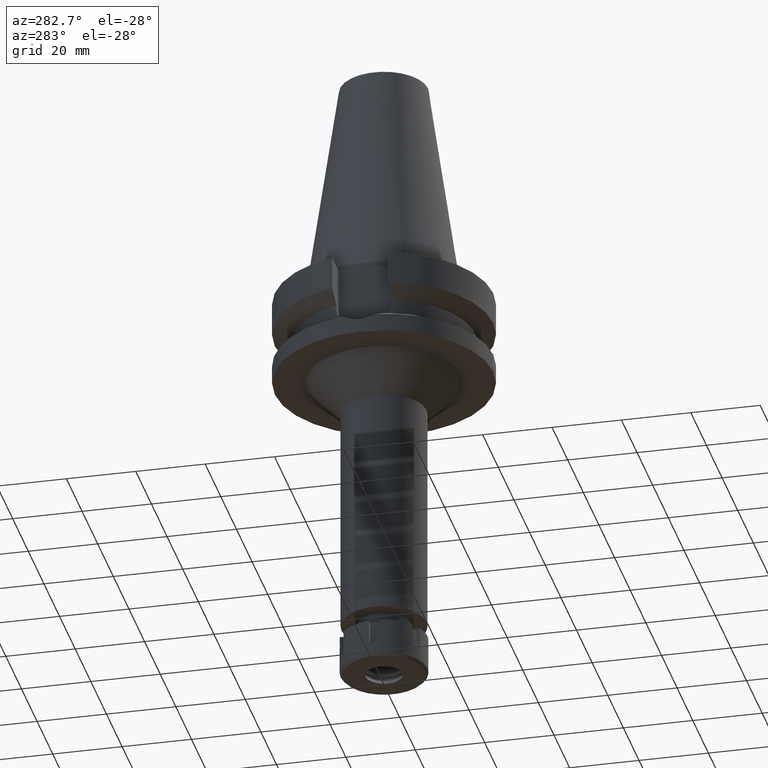
[diagram: clean part render]
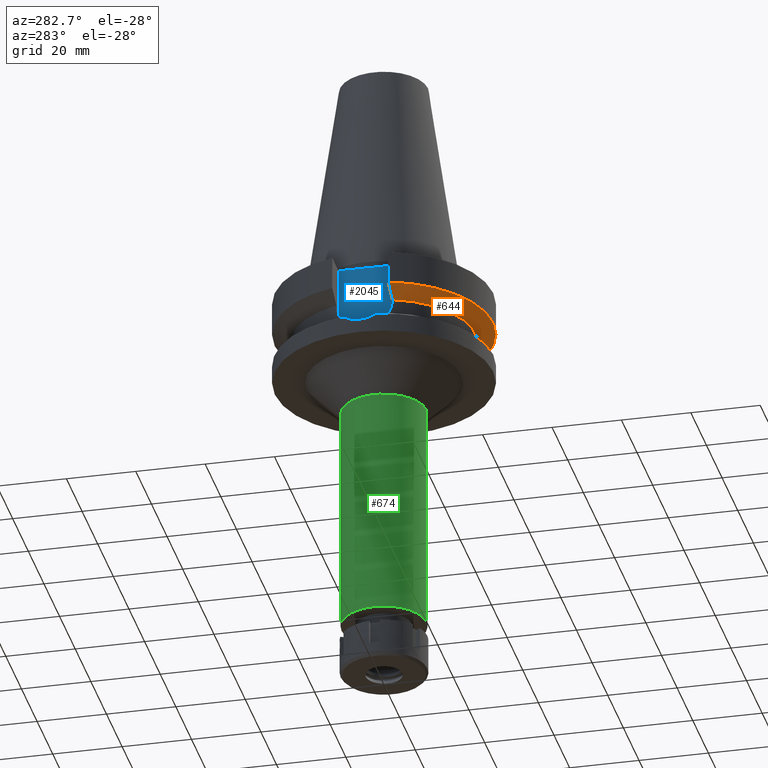
[diagram: same view with three faces highlighted in distinct colors, each labeled with its STEP entity id]
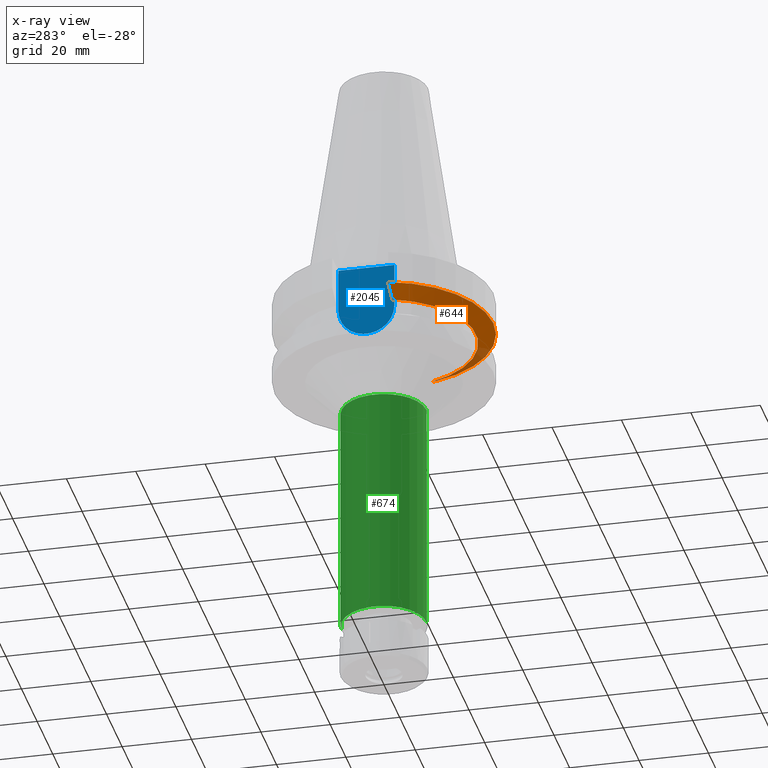
[diagram: x-ray of the same camera — body ghosted, the three highlighted faces saturated]
A machine part, auxiliary view with three faces highlighted in distinct colors.
The next image is the same camera in x-ray (body ghosted, the three faces saturated) — at least one of them is partly hidden behind the body in this view.
Their STEP definitions:

[orange] entity #644 — the highlighted conical surface has half-angle 60 deg.
#82 = CARTESIAN_POINT ( 'NONE',  ( 25.24772266958000344, -8.050000000000000711, -14.45225699861000024 ) ) ;
#123 = DIRECTION ( 'NONE',  ( 0.0000000000000000000, 1.000000000000000000, 0.0000000000000000000 ) ) ;
#185 = DIRECTION ( 'NONE',  ( 0.9527442516822307583, -0.3037735849057093818, 0.0000000000000000000 ) ) ;
#209 = B_SPLINE_CURVE_WITH_KNOTS ( 'NONE', 3,
 ( #419, #1010, #725, #1811 ),
 .UNSPECIFIED., .F., .F.,
 ( 4, 4 ),
 ( 0.0000000000000000000, 1.000000000000000000 ),
 .UNSPECIFIED. ) ;
#344 = ORIENTED_EDGE ( 'NONE', *, *, #775, .F. ) ;
#392 = EDGE_CURVE ( 'NONE', #3501, #2701, #1164, .T. ) ;
#419 = CARTESIAN_POINT ( 'NONE',  ( 25.24772266958000344, -8.050000000000000711, -14.45225699861000024 ) ) ;
#644 = ADVANCED_FACE ( 'NONE', ( #660 ), #3402, .T. ) ;
#649 = ORIENTED_EDGE ( 'NONE', *, *, #2582, .T. ) ;
#660 = FACE_OUTER_BOUND ( 'NONE', #1186, .T. ) ;
#702 = AXIS2_PLACEMENT_3D ( 'NONE', #2314, #1750, #123 ) ;
#725 = CARTESIAN_POINT ( 'NONE',  ( 28.57294949776638759, -8.050008281712610625, -12.61547991384305512 ) ) ;
#775 = EDGE_CURVE ( 'NONE', #1689, #3068, #3468, .T. ) ;
#995 = CARTESIAN_POINT ( 'NONE',  ( -30.45402291362999847, -8.049999278026000127, -11.56551215534000043 ) ) ;
#1010 = CARTESIAN_POINT ( 'NONE',  ( 26.83757728299760359, -8.050003176183857079, -13.57772966268345094 ) ) ;
#1164 = CIRCLE ( 'NONE', #1349, 26.50000000000000711 ) ;
#1186 = EDGE_LOOP ( 'NONE', ( #3024, #1470, #649, #344 ) ) ;
#1349 = AXIS2_PLACEMENT_3D ( 'NONE', #2187, #1917, #185 ) ;
#1350 = CARTESIAN_POINT ( 'NONE',  ( -30.45402291362999847, -8.049999278026000127, -11.56551215534000043 ) ) ;
#1470 = ORIENTED_EDGE ( 'NONE', *, *, #392, .F. ) ;
#1567 = CARTESIAN_POINT ( 'NONE',  ( -26.83754615572276236, -8.049990821050940326, -13.57774888351514164 ) ) ;
#1689 = VERTEX_POINT ( 'NONE', #1350 ) ;
#1750 = DIRECTION ( 'NONE',  ( 0.0000000000000000000, 0.0000000000000000000, 1.000000000000000000 ) ) ;
#1780 = B_SPLINE_CURVE_WITH_KNOTS ( 'NONE', 3,
 ( #995, #1873, #1567, #2420 ),
 .UNSPECIFIED., .F., .F.,
 ( 4, 4 ),
 ( 0.0000000000000000000, 1.000000000000000000 ),
 .UNSPECIFIED. ) ;
#1811 = CARTESIAN_POINT ( 'NONE',  ( 30.45402272279000044, -8.049999999999000622, -11.56550565266999975 ) ) ;
#1873 = CARTESIAN_POINT ( 'NONE',  ( -28.57292328645239010, -8.049998556992253640, -12.61549605752226100 ) ) ;
#1917 = DIRECTION ( 'NONE',  ( 0.0000000000000000000, 0.0000000000000000000, -1.000000000000000000 ) ) ;
#2124 = CARTESIAN_POINT ( 'NONE',  ( 30.45402272279000044, -8.049999999999000622, -11.56550565266999975 ) ) ;
#2160 = CARTESIAN_POINT ( 'NONE',  ( -25.24772413127000092, -8.049995415600999848, -14.45229202940000057 ) ) ;
#2170 = DIRECTION ( 'NONE',  ( 0.0000000000000000000, 0.0000000000000000000, 1.000000000000000000 ) ) ;
#2187 = CARTESIAN_POINT ( 'NONE',  ( 0.0000000000000000000, 1.065333950388000029E-14, -14.45225699861000024 ) ) ;
#2314 = CARTESIAN_POINT ( 'NONE',  ( 0.0000000000000000000, 1.065333950388000029E-14, -13.00888132564000088 ) ) ;
#2407 = AXIS2_PLACEMENT_3D ( 'NONE', #3572, #2170, #2963 ) ;
#2420 = CARTESIAN_POINT ( 'NONE',  ( -25.24772413127000092, -8.049995415600999848, -14.45229202940000057 ) ) ;
#2582 = EDGE_CURVE ( 'NONE', #3501, #3068, #209, .T. ) ;
#2701 = VERTEX_POINT ( 'NONE', #2160 ) ;
#2963 = DIRECTION ( 'NONE',  ( 0.0000000000000000000, -1.000000000000000000, 0.0000000000000000000 ) ) ;
#3024 = ORIENTED_EDGE ( 'NONE', *, *, #3056, .T. ) ;
#3056 = EDGE_CURVE ( 'NONE', #1689, #2701, #1780, .T. ) ;
#3068 = VERTEX_POINT ( 'NONE', #2124 ) ;
#3402 = CONICAL_SURFACE ( 'NONE', #702, 29.00000000000000000, 1.047197551196400456 ) ;
#3468 = CIRCLE ( 'NONE', #2407, 31.50000000000000000 ) ;
#3501 = VERTEX_POINT ( 'NONE', #82 ) ;
#3572 = CARTESIAN_POINT ( 'NONE',  ( 0.0000000000000000000, 1.065333950388000029E-14, -11.56550565266999975 ) ) ;

[blue] entity #2045 — the highlighted planar face has unit normal (-1, 0, 0).
#672 = LINE ( 'NONE', #1249, #1288 ) ;
#688 = VECTOR ( 'NONE', #2161, 1000.000000000000000 ) ;
#897 = AXIS2_PLACEMENT_3D ( 'NONE', #1205, #3452, #924 ) ;
#915 = CARTESIAN_POINT ( 'NONE',  ( -22.50000000000000000, 8.050000000000000711, -2.000000000000000000 ) ) ;
#924 = DIRECTION ( 'NONE',  ( 0.0000000000000000000, -1.000000000000000000, 1.917893035551997704E-14 ) ) ;
#1048 = CARTESIAN_POINT ( 'NONE',  ( -22.50000000000000000, 8.050000000000000711, -14.94999999999999929 ) ) ;
#1169 = VERTEX_POINT ( 'NONE', #915 ) ;
#1188 = CARTESIAN_POINT ( 'NONE',  ( -22.50000000000000000, -8.050000000000000711, -2.000000000000000000 ) ) ;
#1205 = CARTESIAN_POINT ( 'NONE',  ( -22.50000000000000000, 1.807578675540999863E-14, -14.94999999999999929 ) ) ;
#1249 = CARTESIAN_POINT ( 'NONE',  ( -22.50000000000000000, -8.050000000000000711, -2.000000000000000000 ) ) ;
#1263 = CARTESIAN_POINT ( 'NONE',  ( -22.50000000000000000, -8.050000000000000711, -2.000000000000000000 ) ) ;
#1288 = VECTOR ( 'NONE', #2792, 1000.000000000000000 ) ;
#1292 = PLANE ( 'NONE',  #3280 ) ;
#1513 = DIRECTION ( 'NONE',  ( 0.0000000000000000000, 0.0000000000000000000, 1.000000000000000000 ) ) ;
#1517 = VERTEX_POINT ( 'NONE', #2684 ) ;
#1554 = CARTESIAN_POINT ( 'NONE',  ( -22.50000000000000000, 2.173748068486999793E-14, 0.0000000000000000000 ) ) ;
#1775 = LINE ( 'NONE', #1188, #3641 ) ;
#1891 = ORIENTED_EDGE ( 'NONE', *, *, #2916, .F. ) ;
#1949 = CIRCLE ( 'NONE', #897, 8.050000000000000711 ) ;
#1961 = ORIENTED_EDGE ( 'NONE', *, *, #3510, .F. ) ;
#2045 = ADVANCED_FACE ( 'NONE', ( #2111 ), #1292, .T. ) ;
#2111 = FACE_OUTER_BOUND ( 'NONE', #2434, .T. ) ;
#2161 = DIRECTION ( 'NONE',  ( 0.0000000000000000000, 0.0000000000000000000, 1.000000000000000000 ) ) ;
#2166 = EDGE_CURVE ( 'NONE', #2852, #1169, #2439, .T. ) ;
#2350 = ORIENTED_EDGE ( 'NONE', *, *, #2166, .F. ) ;
#2434 = EDGE_LOOP ( 'NONE', ( #2350, #1961, #1891, #3126 ) ) ;
#2439 = LINE ( 'NONE', #1048, #688 ) ;
#2597 = VERTEX_POINT ( 'NONE', #1263 ) ;
#2614 = DIRECTION ( 'NONE',  ( 0.0000000000000000000, 0.0000000000000000000, -1.000000000000000000 ) ) ;
#2684 = CARTESIAN_POINT ( 'NONE',  ( -22.50000000000000000, -8.050000000000000711, -14.94999999999999929 ) ) ;
#2792 = DIRECTION ( 'NONE',  ( 0.0000000000000000000, 1.000000000000000000, 0.0000000000000000000 ) ) ;
#2852 = VERTEX_POINT ( 'NONE', #3374 ) ;
#2916 = EDGE_CURVE ( 'NONE', #2597, #1517, #1775, .T. ) ;
#3126 = ORIENTED_EDGE ( 'NONE', *, *, #3170, .T. ) ;
#3170 = EDGE_CURVE ( 'NONE', #2597, #1169, #672, .T. ) ;
#3280 = AXIS2_PLACEMENT_3D ( 'NONE', #1554, #3464, #1513 ) ;
#3374 = CARTESIAN_POINT ( 'NONE',  ( -22.50000000000000000, 8.050000000000000711, -14.94999999999999929 ) ) ;
#3452 = DIRECTION ( 'NONE',  ( 1.000000000000000000, 0.0000000000000000000, 0.0000000000000000000 ) ) ;
#3464 = DIRECTION ( 'NONE',  ( -1.000000000000000000, 0.0000000000000000000, 0.0000000000000000000 ) ) ;
#3510 = EDGE_CURVE ( 'NONE', #1517, #2852, #1949, .T. ) ;
#3641 = VECTOR ( 'NONE', #2614, 1000.000000000000000 ) ;

[green] entity #674 — the highlighted cylindrical surface (partial cylindrical patch) has radius 12.25 mm, axis along (0, 0, -1).
#191 = CARTESIAN_POINT ( 'NONE',  ( 0.0000000000000000000, 2.135416623673000070E-14, -104.5000000000000000 ) ) ;
#231 = EDGE_CURVE ( 'NONE', #912, #2574, #923, .T. ) ;
#369 = DIRECTION ( 'NONE',  ( 0.0000000000000000000, -1.000000000000000000, 0.0000000000000000000 ) ) ;
#384 = CARTESIAN_POINT ( 'NONE',  ( 0.0000000000000000000, -12.25000000000000000, -37.00000000000000000 ) ) ;
#467 = CIRCLE ( 'NONE', #1346, 12.25000000000000000 ) ;
#674 = ADVANCED_FACE ( 'NONE', ( #1521 ), #2627, .T. ) ;
#679 = DIRECTION ( 'NONE',  ( 0.0000000000000000000, 0.0000000000000000000, -1.000000000000000000 ) ) ;
#758 = CARTESIAN_POINT ( 'NONE',  ( 0.0000000000000000000, -12.25000000000000000, -104.5000000000000000 ) ) ;
#912 = VERTEX_POINT ( 'NONE', #3361 ) ;
#921 = CARTESIAN_POINT ( 'NONE',  ( 0.0000000000000000000, 2.135416623673000070E-14, 74.37000000000000455 ) ) ;
#923 = LINE ( 'NONE', #2038, #1980 ) ;
#974 = ORIENTED_EDGE ( 'NONE', *, *, #2748, .T. ) ;
#1308 = DIRECTION ( 'NONE',  ( 0.0000000000000000000, 1.000000000000000000, 0.0000000000000000000 ) ) ;
#1311 = ORIENTED_EDGE ( 'NONE', *, *, #1571, .T. ) ;
#1346 = AXIS2_PLACEMENT_3D ( 'NONE', #191, #2698, #1308 ) ;
#1444 = ORIENTED_EDGE ( 'NONE', *, *, #231, .T. ) ;
#1491 = LINE ( 'NONE', #384, #3155 ) ;
#1521 = FACE_OUTER_BOUND ( 'NONE', #2583, .T. ) ;
#1571 = EDGE_CURVE ( 'NONE', #3469, #912, #3382, .T. ) ;
#1622 = VERTEX_POINT ( 'NONE', #758 ) ;
#1819 = AXIS2_PLACEMENT_3D ( 'NONE', #921, #2374, #369 ) ;
#1856 = DIRECTION ( 'NONE',  ( 0.0000000000000000000, 0.0000000000000000000, -1.000000000000000000 ) ) ;
#1980 = VECTOR ( 'NONE', #3171, 1000.000000000000000 ) ;
#1988 = CARTESIAN_POINT ( 'NONE',  ( 0.0000000000000000000, -12.25000000000000000, -37.00000000000000000 ) ) ;
#2038 = CARTESIAN_POINT ( 'NONE',  ( 0.0000000000000000000, 12.25000000000000000, -37.00000000000000000 ) ) ;
#2078 = CARTESIAN_POINT ( 'NONE',  ( 0.0000000000000000000, 12.25000000000000000, -104.5000000000000000 ) ) ;
#2094 = EDGE_CURVE ( 'NONE', #3469, #1622, #1491, .T. ) ;
#2374 = DIRECTION ( 'NONE',  ( 0.0000000000000000000, 0.0000000000000000000, -1.000000000000000000 ) ) ;
#2574 = VERTEX_POINT ( 'NONE', #2078 ) ;
#2583 = EDGE_LOOP ( 'NONE', ( #974, #3222, #1311, #1444 ) ) ;
#2627 = CYLINDRICAL_SURFACE ( 'NONE', #1819, 12.25000000000000000 ) ;
#2646 = DIRECTION ( 'NONE',  ( 0.0000000000000000000, -1.000000000000000000, 0.0000000000000000000 ) ) ;
#2698 = DIRECTION ( 'NONE',  ( 0.0000000000000000000, 0.0000000000000000000, 1.000000000000000000 ) ) ;
#2748 = EDGE_CURVE ( 'NONE', #2574, #1622, #467, .T. ) ;
#2914 = AXIS2_PLACEMENT_3D ( 'NONE', #3209, #679, #2646 ) ;
#3155 = VECTOR ( 'NONE', #1856, 1000.000000000000000 ) ;
#3171 = DIRECTION ( 'NONE',  ( 0.0000000000000000000, 0.0000000000000000000, -1.000000000000000000 ) ) ;
#3209 = CARTESIAN_POINT ( 'NONE',  ( 0.0000000000000000000, 0.0000000000000000000, -37.00000000000000000 ) ) ;
#3222 = ORIENTED_EDGE ( 'NONE', *, *, #2094, .F. ) ;
#3361 = CARTESIAN_POINT ( 'NONE',  ( 0.0000000000000000000, 12.25000000000000000, -37.00000000000000000 ) ) ;
#3382 = CIRCLE ( 'NONE', #2914, 12.25000000000000000 ) ;
#3469 = VERTEX_POINT ( 'NONE', #1988 ) ;